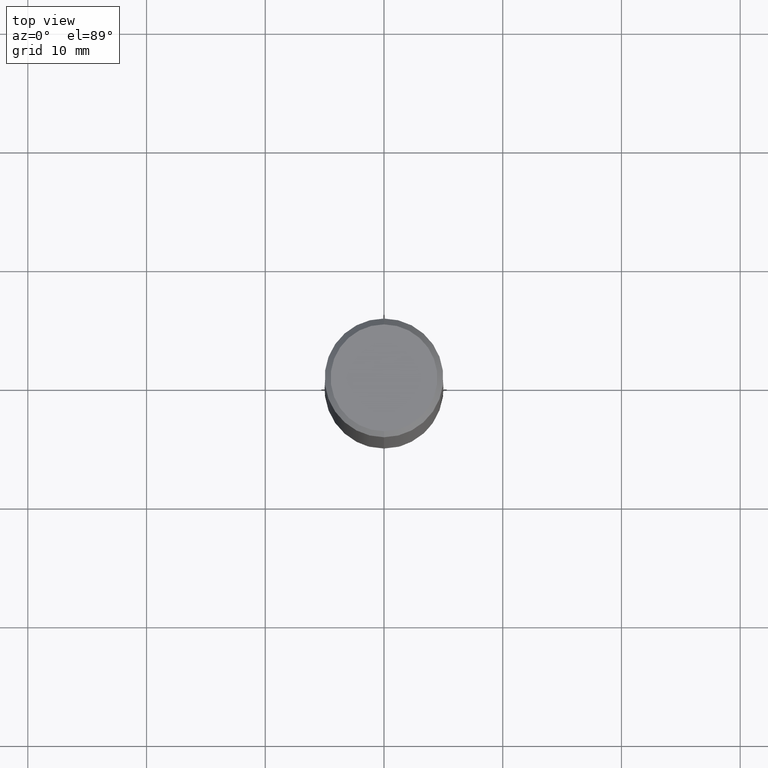
[diagram: clean part render]
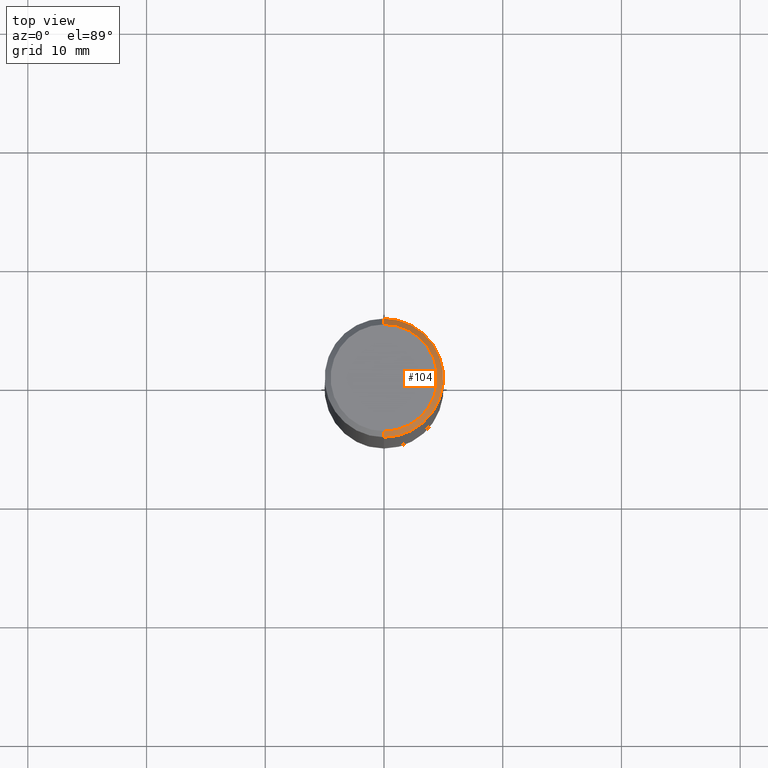
[diagram: same view with one face highlighted and labeled with its STEP entity id]
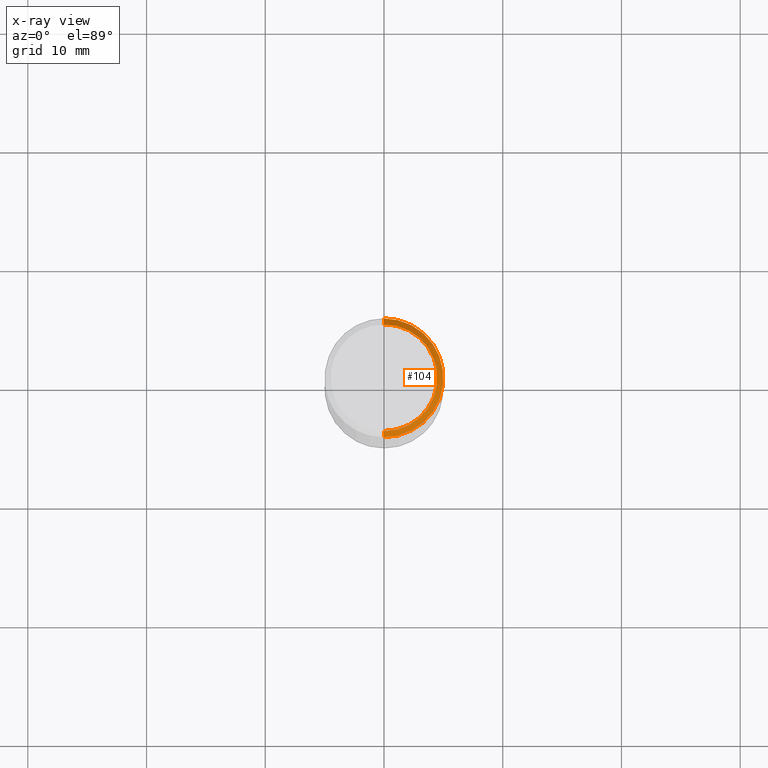
[diagram: x-ray of the same camera — body ghosted, the highlighted face saturated]
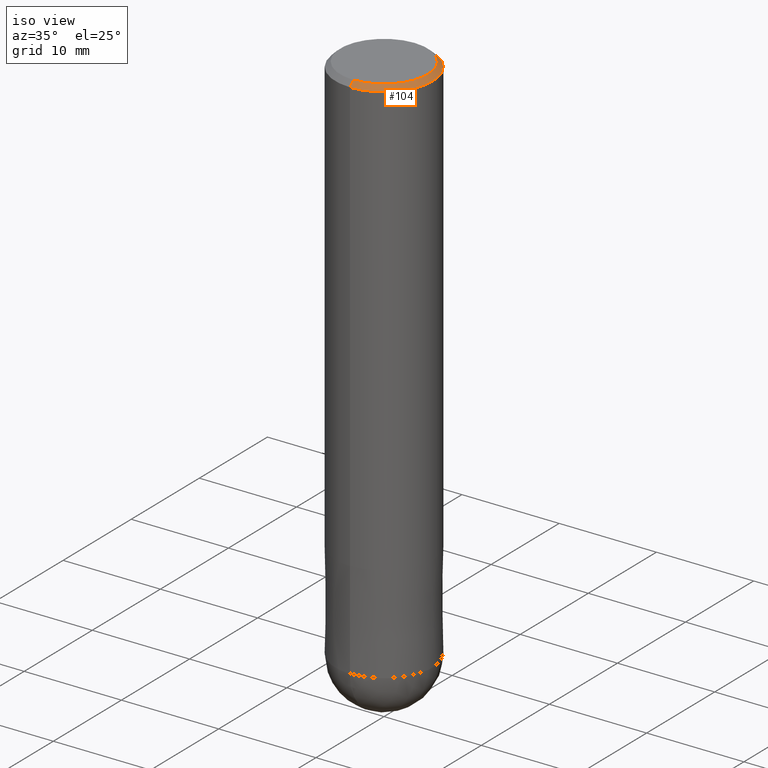
[diagram: same view with one face highlighted and labeled with its STEP entity id]
A machine part, top view. The second image highlights one B-rep face of the part: STEP entity #104.
The next image is the same camera in x-ray: the body ghosted, the highlighted face saturated — about 0% of this face is hidden behind the body in this view.
A second angle (iso view) of the same face is appended — the face is thin or edge-on in the first view.
In plain terms, the highlighted conical surface has half-angle 45 deg.
Its self-contained STEP definition (entity closure, byte-faithful):
#62=EDGE_CURVE('',#124,#88,#154,.T.);
#64=EDGE_CURVE('',#92,#86,#156,.T.);
#70=EDGE_CURVE('',#124,#86,#162,.T.);
#82=EDGE_CURVE('',#88,#92,#174,.T.);
#86=VERTEX_POINT('',#179);
#88=VERTEX_POINT('',#181);
#92=VERTEX_POINT('',#185);
#104=ADVANCED_FACE('',(#199),#200,.T.);
#124=VERTEX_POINT('',#223);
#154=LINE('',#248,#249);
#156=LINE('',#252,#253);
#162=CIRCLE('',#262,4.5);
#174=CIRCLE('',#278,5.0);
#179=CARTESIAN_POINT('',(5.5107285922007E-016,-4.5,0.0));
#181=CARTESIAN_POINT('',(0.0,5.0,-0.5));
#185=CARTESIAN_POINT('',(6.12303176911189E-016,-5.0,-0.5));
#199=FACE_OUTER_BOUND('',#308,.T.);
#200=CONICAL_SURFACE('',#309,4.75,0.785398163397448);
#223=CARTESIAN_POINT('',(0.0,4.5,0.0));
#248=CARTESIAN_POINT('',(-5.81688018065629E-016,4.75,-0.25));
#249=VECTOR('',#356,1.0);
#252=CARTESIAN_POINT('',(5.81688018065629E-016,-4.75,-0.25));
#253=VECTOR('',#357,1.0);
#262=AXIS2_PLACEMENT_3D('',#364,#365,#366);
#278=AXIS2_PLACEMENT_3D('',#376,#377,#378);
#308=EDGE_LOOP('',(#407,#408,#409,#410));
#309=AXIS2_PLACEMENT_3D('',#411,#412,#413);
#356=DIRECTION('',(-8.65927457071936E-017,0.707106781186548,-0.707106781186548));
#357=DIRECTION('',(-8.65927457071936E-017,0.707106781186548,0.707106781186548));
#364=CARTESIAN_POINT('',(0.0,0.0,0.0));
#365=DIRECTION('',(0.0,0.0,-1.0));
#366=DIRECTION('',(0.0,1.0,0.0));
#376=CARTESIAN_POINT('',(0.0,0.0,-0.5));
#377=DIRECTION('',(0.0,0.0,-1.0));
#378=DIRECTION('',(0.0,1.0,0.0));
#407=ORIENTED_EDGE('',*,*,#62,.F.);
#408=ORIENTED_EDGE('',*,*,#70,.T.);
#409=ORIENTED_EDGE('',*,*,#64,.F.);
#410=ORIENTED_EDGE('',*,*,#82,.F.);
#411=CARTESIAN_POINT('',(0.0,0.0,-0.25));
#412=DIRECTION('',(0.0,-0.0,-1.0));
#413=DIRECTION('',(0.0,1.0,0.0));